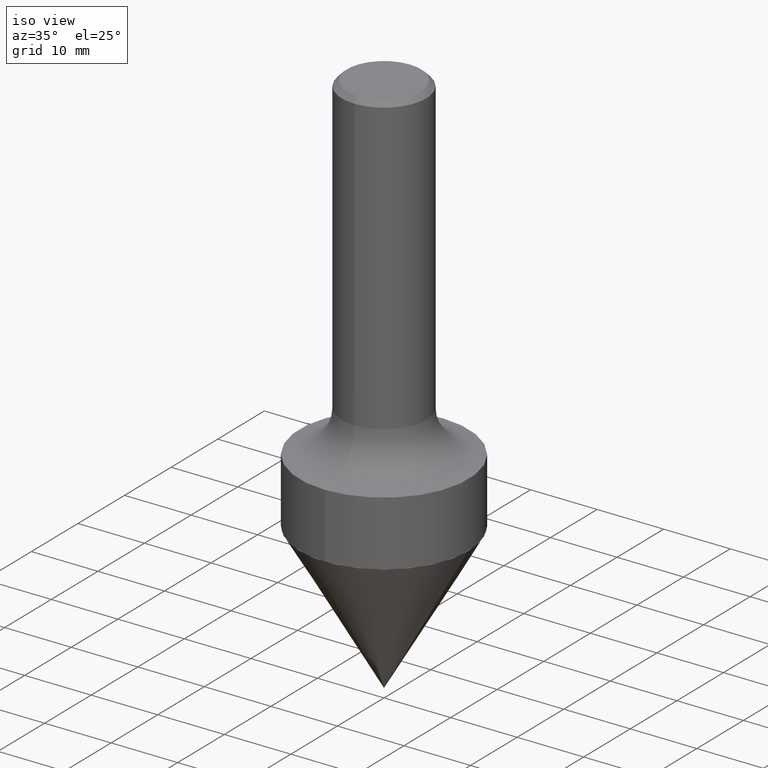
[diagram: clean part render]
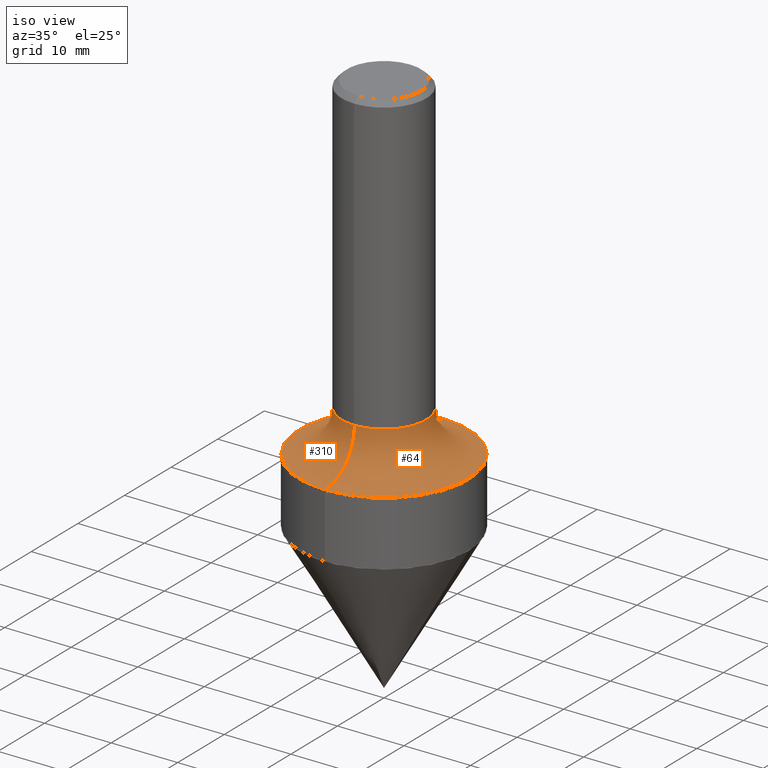
[diagram: same view with one multi-face feature highlighted, each face labeled with its STEP entity id]
A machine part, iso view. The highlighted faces form ONE feature: a constant-radius fillet chain: 2 tangent blend faces with common blend radius 6.35 mm. The faces share edges in the B-rep.
Their STEP definitions:
[1] entity #64 (Torus):
#5 = CARTESIAN_POINT ( 'NONE',  ( -3.491481338843089179E-15, -0.5000000000000058842, -1.749999999999998890 ) ) ;
#27 = VERTEX_POINT ( 'NONE', #114 ) ;
#51 = CIRCLE ( 'NONE', #155, 0.2500000000000002220 ) ;
#55 = TOROIDAL_SURFACE ( 'NONE', #379, 0.4999999999999997780, 0.2499999999999995282 ) ;
#60 = CARTESIAN_POINT ( 'NONE',  ( -1.745740669421525460E-15, -0.2500000000000063283, -1.749999999999999556 ) ) ;
#64 = ADVANCED_FACE ( 'NONE', ( #302 ), #55, .F. ) ;
#72 = ORIENTED_EDGE ( 'NONE', *, *, #126, .T. ) ;
#91 = CIRCLE ( 'NONE', #303, 0.2499999999999994449 ) ;
#112 = DIRECTION ( 'NONE',  ( -6.982962677686265133E-15, -1.000000000000000000, 3.278217592397113101E-15 ) ) ;
#113 = DIRECTION ( 'NONE',  ( -6.982962677686265922E-15, -1.000000000000000000, 3.518208477467953618E-15 ) ) ;
#114 = CARTESIAN_POINT ( 'NONE',  ( 2.664535259100420662E-15, 0.2499999999999940603, -1.750000000000001332 ) ) ;
#115 = DIRECTION ( 'NONE',  ( -2.426805345035298041E-29, 3.518208477467954013E-15, 1.000000000000000000 ) ) ;
#120 = ORIENTED_EDGE ( 'NONE', *, *, #357, .T. ) ;
#126 = EDGE_CURVE ( 'NONE', #311, #353, #434, .T. ) ;
#139 = DIRECTION ( 'NONE',  ( -2.426805345035298041E-29, 3.518208477467954013E-15, 1.000000000000000000 ) ) ;
#146 = DIRECTION ( 'NONE',  ( -2.426805345035298041E-29, 3.518208477467954013E-15, 1.000000000000000000 ) ) ;
#148 = CARTESIAN_POINT ( 'NONE',  ( -3.491481338843082868E-15, -0.5000000000000067724, -1.999999999999998446 ) ) ;
#154 = DIRECTION ( 'NONE',  ( -1.000000000000000000, 6.982962677686265922E-15, -4.883557194083112340E-29 ) ) ;
#155 = AXIS2_PLACEMENT_3D ( 'NONE', #371, #139, #112 ) ;
#216 = EDGE_CURVE ( 'NONE', #27, #470, #91, .T. ) ;
#241 = ORIENTED_EDGE ( 'NONE', *, *, #216, .F. ) ;
#254 = DIRECTION ( 'NONE',  ( 1.000000000000000000, -7.105427357601001070E-15, 4.926642821589754317E-29 ) ) ;
#259 = AXIS2_PLACEMENT_3D ( 'NONE', #5, #154, #274 ) ;
#262 = CARTESIAN_POINT ( 'NONE',  ( 4.853610690070596082E-29, -7.036416954935907236E-15, -2.000000000000000000 ) ) ;
#271 = EDGE_LOOP ( 'NONE', ( #241, #394, #72, #120 ) ) ;
#274 = DIRECTION ( 'NONE',  ( -6.982962677686269077E-15, -1.000000000000000000, 0.000000000000000000 ) ) ;
#302 = FACE_OUTER_BOUND ( 'NONE', #271, .T. ) ;
#303 = AXIS2_PLACEMENT_3D ( 'NONE', #398, #254, #369 ) ;
#308 = CARTESIAN_POINT ( 'NONE',  ( 4.231879429371815934E-29, -6.178388542817113076E-15, -1.750000000000000444 ) ) ;
#311 = VERTEX_POINT ( 'NONE', #60 ) ;
#349 = AXIS2_PLACEMENT_3D ( 'NONE', #262, #115, #485 ) ;
#353 = VERTEX_POINT ( 'NONE', #148 ) ;
#357 = EDGE_CURVE ( 'NONE', #353, #470, #460, .T. ) ;
#369 = DIRECTION ( 'NONE',  ( 7.105427357601001859E-15, 1.000000000000000000, 0.000000000000000000 ) ) ;
#371 = CARTESIAN_POINT ( 'NONE',  ( 4.246909353811772973E-29, -6.156864835568921297E-15, -1.750000000000000444 ) ) ;
#379 = AXIS2_PLACEMENT_3D ( 'NONE', #308, #146, #113 ) ;
#394 = ORIENTED_EDGE ( 'NONE', *, *, #444, .F. ) ;
#398 = CARTESIAN_POINT ( 'NONE',  ( 3.552713678800541161E-15, 0.4999999999999936162, -1.750000000000001998 ) ) ;
#411 = CARTESIAN_POINT ( 'NONE',  ( 3.552713678800546683E-15, 0.4999999999999927280, -2.000000000000001776 ) ) ;
#434 = CIRCLE ( 'NONE', #259, 0.2499999999999994449 ) ;
#444 = EDGE_CURVE ( 'NONE', #311, #27, #51, .T. ) ;
#460 = CIRCLE ( 'NONE', #349, 0.4999999999999997224 ) ;
#470 = VERTEX_POINT ( 'NONE', #411 ) ;
#485 = DIRECTION ( 'NONE',  ( -6.982962677686265922E-15, -1.000000000000000000, 3.278217592397117834E-15 ) ) ;
[2] entity #310 (Torus):
#5 = CARTESIAN_POINT ( 'NONE',  ( -3.491481338843089179E-15, -0.5000000000000058842, -1.749999999999998890 ) ) ;
#27 = VERTEX_POINT ( 'NONE', #114 ) ;
#32 = DIRECTION ( 'NONE',  ( -2.426805345035298041E-29, 3.518208477467954013E-15, 1.000000000000000000 ) ) ;
#60 = CARTESIAN_POINT ( 'NONE',  ( -1.745740669421525460E-15, -0.2500000000000063283, -1.749999999999999556 ) ) ;
#66 = AXIS2_PLACEMENT_3D ( 'NONE', #361, #133, #318 ) ;
#73 = DIRECTION ( 'NONE',  ( -6.982962677686265133E-15, -1.000000000000000000, 3.278217592397113101E-15 ) ) ;
#91 = CIRCLE ( 'NONE', #303, 0.2499999999999994449 ) ;
#114 = CARTESIAN_POINT ( 'NONE',  ( 2.664535259100420662E-15, 0.2499999999999940603, -1.750000000000001332 ) ) ;
#126 = EDGE_CURVE ( 'NONE', #311, #353, #434, .T. ) ;
#133 = DIRECTION ( 'NONE',  ( -2.426805345035298041E-29, 3.518208477467954013E-15, 1.000000000000000000 ) ) ;
#144 = CARTESIAN_POINT ( 'NONE',  ( 4.246909353811772973E-29, -6.156864835568921297E-15, -1.750000000000000444 ) ) ;
#148 = CARTESIAN_POINT ( 'NONE',  ( -3.491481338843082868E-15, -0.5000000000000067724, -1.999999999999998446 ) ) ;
#154 = DIRECTION ( 'NONE',  ( -1.000000000000000000, 6.982962677686265922E-15, -4.883557194083112340E-29 ) ) ;
#170 = ORIENTED_EDGE ( 'NONE', *, *, #482, .F. ) ;
#174 = FACE_OUTER_BOUND ( 'NONE', #420, .T. ) ;
#205 = ORIENTED_EDGE ( 'NONE', *, *, #281, .T. ) ;
#207 = CARTESIAN_POINT ( 'NONE',  ( 4.231879429371815934E-29, -6.178388542817113076E-15, -1.750000000000000444 ) ) ;
#213 = AXIS2_PLACEMENT_3D ( 'NONE', #207, #285, #438 ) ;
#216 = EDGE_CURVE ( 'NONE', #27, #470, #91, .T. ) ;
#220 = CIRCLE ( 'NONE', #66, 0.4999999999999997224 ) ;
#243 = ORIENTED_EDGE ( 'NONE', *, *, #126, .F. ) ;
#254 = DIRECTION ( 'NONE',  ( 1.000000000000000000, -7.105427357601001070E-15, 4.926642821589754317E-29 ) ) ;
#259 = AXIS2_PLACEMENT_3D ( 'NONE', #5, #154, #274 ) ;
#274 = DIRECTION ( 'NONE',  ( -6.982962677686269077E-15, -1.000000000000000000, 0.000000000000000000 ) ) ;
#278 = TOROIDAL_SURFACE ( 'NONE', #213, 0.4999999999999997780, 0.2499999999999995282 ) ;
#281 = EDGE_CURVE ( 'NONE', #470, #353, #220, .T. ) ;
#285 = DIRECTION ( 'NONE',  ( -2.426805345035298041E-29, 3.518208477467954013E-15, 1.000000000000000000 ) ) ;
#303 = AXIS2_PLACEMENT_3D ( 'NONE', #398, #254, #369 ) ;
#310 = ADVANCED_FACE ( 'NONE', ( #174 ), #278, .F. ) ;
#311 = VERTEX_POINT ( 'NONE', #60 ) ;
#318 = DIRECTION ( 'NONE',  ( -6.982962677686265922E-15, -1.000000000000000000, 3.278217592397117834E-15 ) ) ;
#353 = VERTEX_POINT ( 'NONE', #148 ) ;
#361 = CARTESIAN_POINT ( 'NONE',  ( 4.853610690070596082E-29, -7.036416954935907236E-15, -2.000000000000000000 ) ) ;
#369 = DIRECTION ( 'NONE',  ( 7.105427357601001859E-15, 1.000000000000000000, 0.000000000000000000 ) ) ;
#392 = AXIS2_PLACEMENT_3D ( 'NONE', #144, #32, #73 ) ;
#398 = CARTESIAN_POINT ( 'NONE',  ( 3.552713678800541161E-15, 0.4999999999999936162, -1.750000000000001998 ) ) ;
#411 = CARTESIAN_POINT ( 'NONE',  ( 3.552713678800546683E-15, 0.4999999999999927280, -2.000000000000001776 ) ) ;
#420 = EDGE_LOOP ( 'NONE', ( #170, #490, #205, #243 ) ) ;
#434 = CIRCLE ( 'NONE', #259, 0.2499999999999994449 ) ;
#435 = CIRCLE ( 'NONE', #392, 0.2500000000000002220 ) ;
#438 = DIRECTION ( 'NONE',  ( -6.982962677686265922E-15, -1.000000000000000000, 3.518208477467953618E-15 ) ) ;
#470 = VERTEX_POINT ( 'NONE', #411 ) ;
#482 = EDGE_CURVE ( 'NONE', #27, #311, #435, .T. ) ;
#490 = ORIENTED_EDGE ( 'NONE', *, *, #216, .T. ) ;